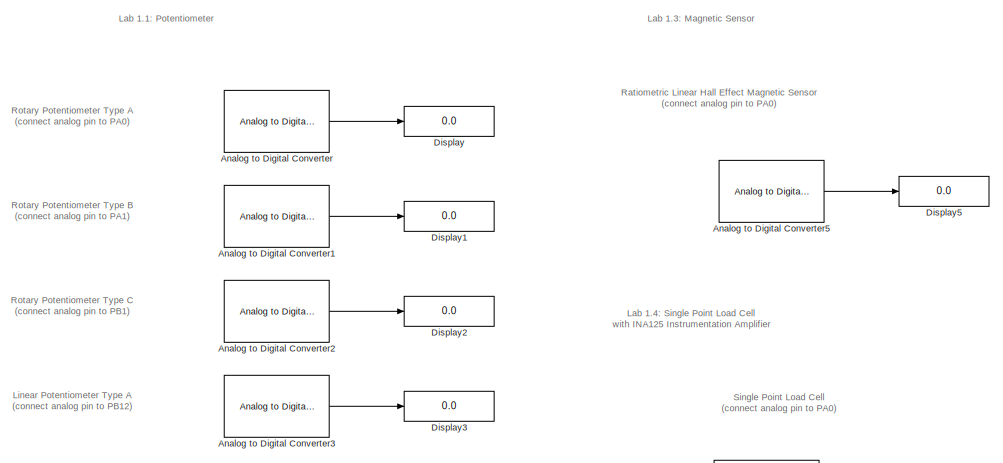
[diagram: root canvas - part 1/2, full width, top band]
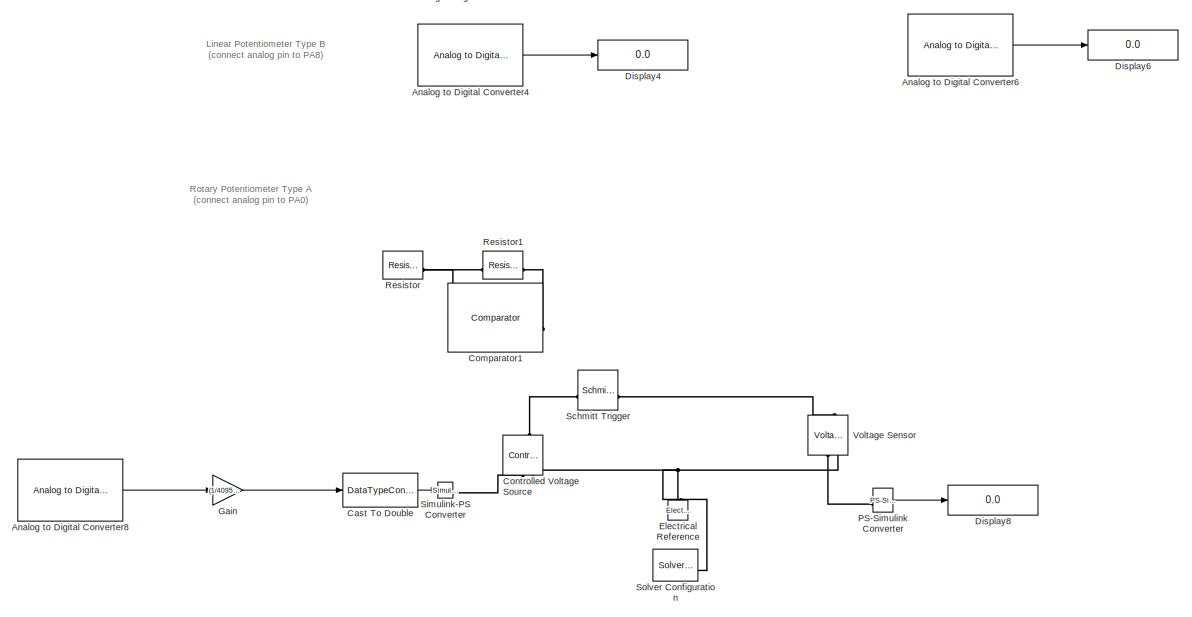
[diagram: root canvas - part 2/2, full width, bottom band]
MODEL slx_bcaf4160de33
KIND model
CONFIG AbsTol = auto
CONFIG EnableMultiTasking = on
CONFIG FixedStep = auto
CONFIG MaxStep = auto
CONFIG MinStep = auto
CONFIG RelTol = 1e-3
CONFIG SampleTimeConstraint = Unconstrained
CONFIG SolverName = FixedStepAuto
CONFIG StartTime = 0.0
CONFIG StopTime = inf
BLOCK [Reference] Analog to Digital Converter  REF=stm32f4xxblockslib/Analog to Digital Converter
  Commented = on
  LibrarySourceBlock = stm32g4xxblockslib/Analog to Digital Converter
  SourceBlock = stm32f4xxblockslib/Analog to Digital Converter
  SourceType = stm32cube.blocks.AnalogInput
BLOCK [Reference] Analog to Digital Converter1  REF=stm32f4xxblockslib/Analog to Digital Converter
  Commented = on
  LibrarySourceBlock = stm32g4xxblockslib/Analog to Digital Converter
  SourceBlock = stm32f4xxblockslib/Analog to Digital Converter
  SourceType = stm32cube.blocks.AnalogInput
BLOCK [Reference] Analog to Digital Converter2  REF=stm32f4xxblockslib/Analog to Digital Converter
  Commented = on
  LibrarySourceBlock = stm32g4xxblockslib/Analog to Digital Converter
  SourceBlock = stm32f4xxblockslib/Analog to Digital Converter
  SourceType = stm32cube.blocks.AnalogInput
BLOCK [Reference] Analog to Digital Converter3  REF=stm32f4xxblockslib/Analog to Digital Converter
  Commented = on
  LibrarySourceBlock = stm32g4xxblockslib/Analog to Digital Converter
  SourceBlock = stm32f4xxblockslib/Analog to Digital Converter
  SourceType = stm32cube.blocks.AnalogInput
BLOCK [Reference] Analog to Digital Converter4  REF=stm32f4xxblockslib/Analog to Digital Converter
  Commented = on
  LibrarySourceBlock = stm32g4xxblockslib/Analog to Digital Converter
  SourceBlock = stm32f4xxblockslib/Analog to Digital Converter
  SourceType = stm32cube.blocks.AnalogInput
BLOCK [Reference] Analog to Digital Converter5  REF=stm32f4xxblockslib/Analog to Digital Converter
  Commented = on
  LibrarySourceBlock = stm32g4xxblockslib/Analog to Digital Converter
  SourceBlock = stm32f4xxblockslib/Analog to Digital Converter
  SourceType = stm32cube.blocks.AnalogInput
BLOCK [Reference] Analog to Digital Converter6  REF=stm32f4xxblockslib/Analog to Digital Converter
  Commented = on
  LibrarySourceBlock = stm32g4xxblockslib/Analog to Digital Converter
  SourceBlock = stm32f4xxblockslib/Analog to Digital Converter
  SourceType = stm32cube.blocks.AnalogInput
BLOCK [Reference] Analog to Digital Converter8  REF=stm32f4xxblockslib/Analog to Digital Converter
  LibrarySourceBlock = stm32g4xxblockslib/Analog to Digital Converter
  SourceBlock = stm32f4xxblockslib/Analog to Digital Converter
  SourceType = stm32cube.blocks.AnalogInput
BLOCK [DataTypeConversion] Cast To Double
  OutDataTypeStr = double
  RndMeth = Floor
  SaturateOnIntegerOverflow = off
BLOCK [Reference] Comparator1  REF=ee_lib/Integrated Circuits/Comparator
  SourceBlock = ee_lib/Integrated Circuits/Comparator
  SourceType = Comparator
BLOCK [Reference] Controlled Voltage Source  REF=fl_lib/Electrical/Electrical Sources/Controlled Voltage
Source
  NameLocation = right
  SourceBlock = fl_lib/Electrical/Electrical Sources/Controlled Voltage\nSource
  SourceType = Controlled Voltage\nSource
BLOCK [Display] Display
  Commented = on
  Decimation = 1
BLOCK [Display] Display1
  Commented = on
  Decimation = 1
BLOCK [Display] Display2
  Commented = on
  Decimation = 1
BLOCK [Display] Display3
  Commented = on
  Decimation = 1
BLOCK [Display] Display4
  Commented = on
  Decimation = 1
BLOCK [Display] Display5
  Commented = on
  Decimation = 1
BLOCK [Display] Display6
  Commented = on
  Decimation = 1
BLOCK [Display] Display8
  Decimation = 1
BLOCK [Reference] Electrical Reference  REF=fl_lib/Electrical/Electrical Elements/Electrical Reference
  LibrarySourceBlock = ee_lib/Connectors &\nReferences/Electrical Reference
  NameLocation = right
  SourceBlock = fl_lib/Electrical/Electrical Elements/Electrical Reference
  SourceType = Electrical Reference
BLOCK [Gain] Gain
  Gain = (1/4095)*3.3
BLOCK [Reference] PS-Simulink Converter  REF=nesl_utility/PS-Simulink
Converter
  SourceBlock = nesl_utility/PS-Simulink\nConverter
  SourceType = PS-Simulink\nConverter
BLOCK [Reference] Resistor  REF=fl_lib/Electrical/Electrical Elements/Resistor
  SourceBlock = fl_lib/Electrical/Electrical Elements/Resistor
  SourceType = Resistor
BLOCK [Reference] Resistor1  REF=fl_lib/Electrical/Electrical Elements/Resistor
  SourceBlock = fl_lib/Electrical/Electrical Elements/Resistor
  SourceType = Resistor
BLOCK [Reference] Schmitt Trigger  REF=ee_lib/Integrated Circuits/Logic/Schmitt Trigger
  SourceBlock = ee_lib/Integrated Circuits/Logic/Schmitt Trigger
  SourceType = Schmitt Trigger
BLOCK [Reference] Simulink-PS Converter  REF=nesl_utility/Simulink-PS
Converter
  SourceBlock = nesl_utility/Simulink-PS\nConverter
  SourceType = Simulink-PS\nConverter
BLOCK [Reference] Solver Configuration  REF=nesl_utility/Solver
Configuration
  SourceBlock = nesl_utility/Solver\nConfiguration
  SourceType = Solver\nConfiguration
BLOCK [Reference] Voltage Sensor  REF=fl_lib/Electrical/Electrical Sensors/Voltage Sensor
  NameLocation = right
  SourceBlock = fl_lib/Electrical/Electrical Sensors/Voltage Sensor
  SourceType = Voltage Sensor
ANNOTATION (root): Single Point Load Cell (connect analog pin to PA0)
ANNOTATION (root): Lab 1.4: Single Point Load Cell with INA125 Instrumentation Amplifier
ANNOTATION (root): Ratiometric Linear Hall Effect Magnetic Sensor (connect analog pin to PA0)
ANNOTATION (root): Lab 1.1: Potentiometer
ANNOTATION (root): Lab 1.3: Magnetic Sensor
ANNOTATION (root): Linear Potentiometer Type A (connect analog pin to PB12)
ANNOTATION (root): Linear Potentiometer Type B (connect analog pin to PA8)
ANNOTATION (root): Rotary Potentiometer Type A (connect analog pin to PA0)
ANNOTATION (root): Rotary Potentiometer Type B (connect analog pin to PA1)
ANNOTATION (root): Rotary Potentiometer Type C (connect analog pin to PB1)
LINE Analog to Digital Converter1:1 -> Display1:1
LINE Analog to Digital Converter2:1 -> Display2:1
LINE Analog to Digital Converter3:1 -> Display3:1
LINE Analog to Digital Converter4:1 -> Display4:1
LINE Analog to Digital Converter5:1 -> Display5:1
LINE Analog to Digital Converter6:1 -> Display6:1
LINE Analog to Digital Converter8:1 -> Gain:1
LINE Analog to Digital Converter:1 -> Display:1
LINE Cast To Double:1 -> Simulink-PS Converter:1
LINE Gain:1 -> Cast To Double:1
LINE PS-Simulink Converter:1 -> Display8:1
PNET net1: Comparator1:LConn1 -- Resistor1:LConn1 -- Resistor:RConn1
PLINE Comparator1:RConn1 -- Resistor1:RConn1
PLINE Controlled Voltage Source:LConn1 -- Schmitt Trigger:LConn1
PLINE Controlled Voltage Source:RConn1 -- Simulink-PS Converter:RConn1
PNET net2: Controlled Voltage Source:RConn2 -- Electrical Reference:LConn1 -- Solver Configuration:RConn1 -- Voltage Sensor:RConn2
PLINE PS-Simulink Converter:LConn1 -- Voltage Sensor:RConn1
PLINE Schmitt Trigger:RConn1 -- Voltage Sensor:LConn1
note: PNET lines group multi-terminal physical nets as a canonical sorted terminal list (undirected conserving connections); 2-terminal nets keep the pairwise PLINE form
